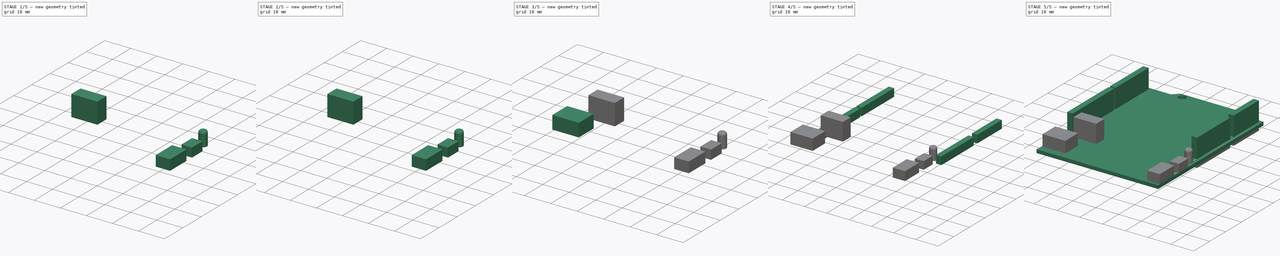
[diagram: build sequence overview — one tinted view per stage of 5, left to right]
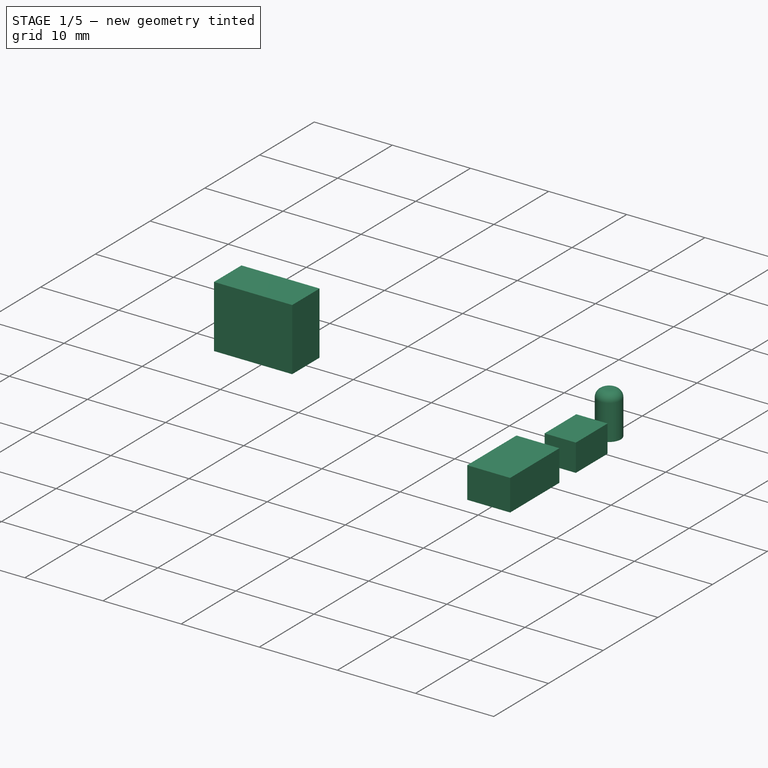
[diagram: stage 1 of 5 — iso view after this stage's code; geometry added in this stage tinted green]
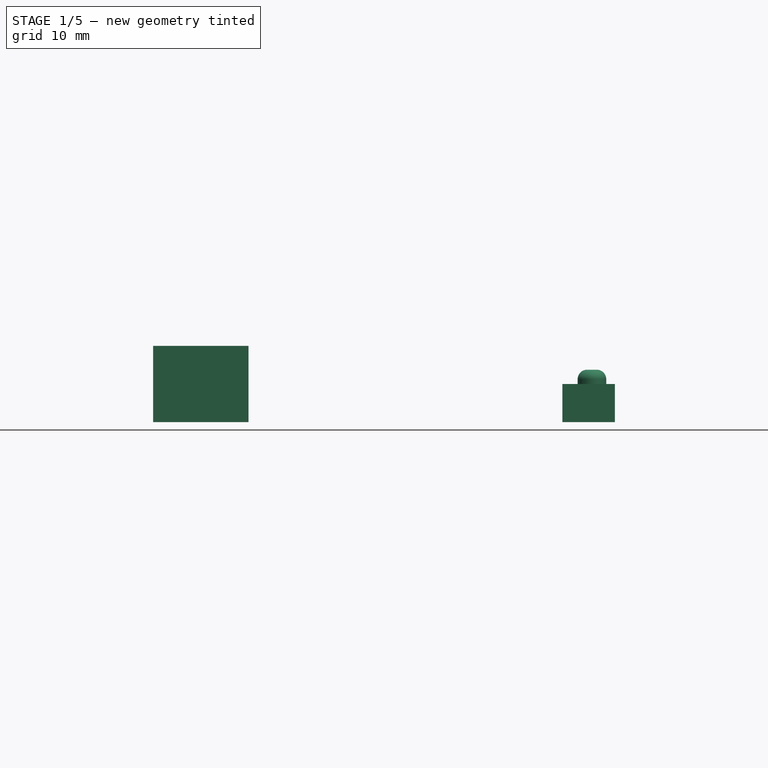
[diagram: stage 1 of 5 — front view after this stage's code; geometry added in this stage tinted green]
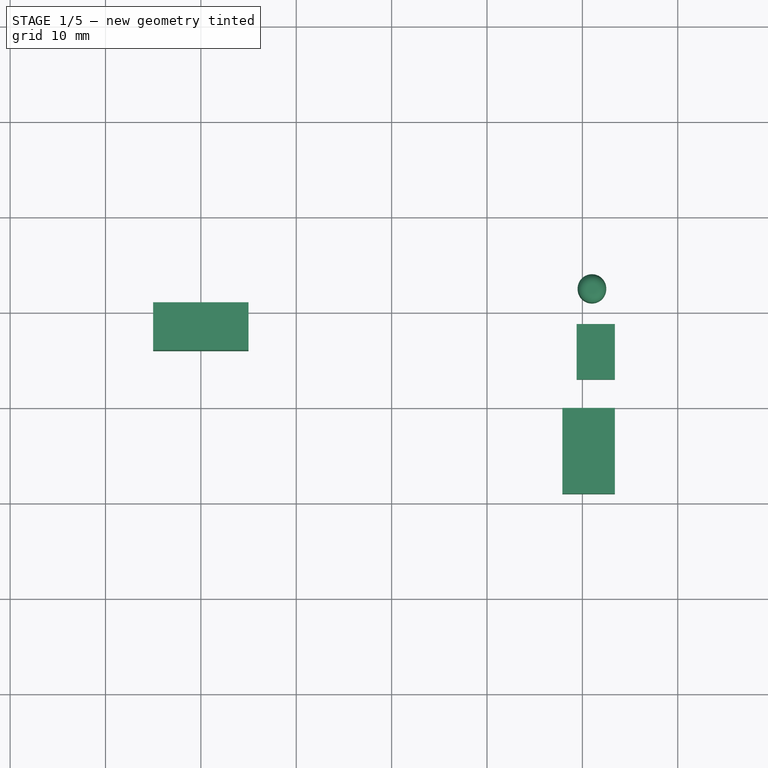
[diagram: stage 1 of 5 — top view after this stage's code; geometry added in this stage tinted green]
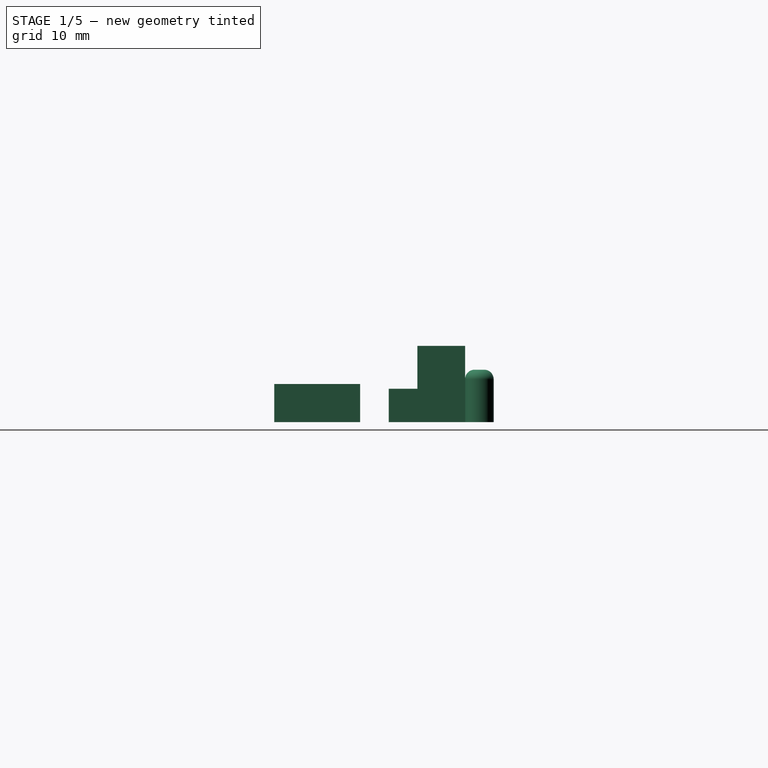
[diagram: stage 1 of 5 — right view after this stage's code; geometry added in this stage tinted green]
FCSTD DOCUMENT  (FreeCAD 0.19R24276 (Git))
Label: Grove_Shield
License: All rights reserved
LicenseURL: http://en.wikipedia.org/wiki/All_rights_reserved
objects: PartDesign::Body×28, Sketcher::SketchObject×15, PartDesign::Pad×14, PartDesign::FeatureBase×14, App::Part×5, PartDesign::Pocket×1, PartDesign::Fillet×1
note: 89 computed .brp shape members not serialized (recipe doc carries the construction recipe); baked Part::Feature solids carry a one-line shape summary decoded from their .brp

FEATURE [PartDesign::Body] Body012  label="Grove_A0"
  BaseFeature = -> Body009
  Group = -> [Clone002]
  Origin = -> Origin013
  Placement = pos=(36,0,0) rot=(0,0,1;0rad)
  Tip = -> Clone002
FEATURE [Sketcher::SketchObject] Sketch011
  FullyConstrained = true
  MapMode = 5
  Support = -> [XY_Plane014]
  sketch-geometry (4):
    g0: LineSegment StartX=5 StartY=21 StartZ=0 EndX=15 EndY=21 EndZ=0
    g1: LineSegment StartX=15 StartY=21 StartZ=0 EndX=15 EndY=16 EndZ=0
    g2: LineSegment StartX=15 StartY=16 StartZ=0 EndX=5 EndY=16 EndZ=0
    g3: LineSegment StartX=5 StartY=16 StartZ=0 EndX=5 EndY=21 EndZ=0
  constraints (12):
    c: Coincident(g0,g1)
    c: Coincident(g1,g2)
    c: Coincident(g2,g3)
    c: Coincident(g3,g0)
    c: Horizontal(g0)
    c: Horizontal(g2)
    c: Vertical(g1)
    c: Vertical(g3)
    c: Distance(g0) = 10
    c: Distance(g1) = 5
    c: DistanceX(g-1,g1) = 15
    c: DistanceY(g-1,g0) = 21
FEATURE [PartDesign::Pad] Pad010
  Direction = (1,1,1)
  Length = 8
  Length2 = 100
  Profile = -> Sketch011
  Type = 0
FEATURE [PartDesign::Body] Body027  label="Grove_D5"
  BaseFeature = -> Body013
  Group = -> [Clone012]
  Origin = -> Origin031
  Placement = pos=(14,36,0) rot=(0,0,1;0rad)
  Tip = -> Clone012
FEATURE [PartDesign::FeatureBase] Clone013
  BaseFeature = -> Body013
FEATURE [PartDesign::Body] Body028  label="Grove_I2C4"
  BaseFeature = -> Body013
  Group = -> [Clone013]
  Origin = -> Origin032
  Placement = pos=(28,36,0) rot=(0,0,1;0rad)
  Tip = -> Clone013
FEATURE [App::Part] Part003  label="GroveConnectors"
  Group = -> [Body009,Body010,Body011,Body012,Body013,Body014,Body015,Body016,Body021,Body022,Body023,Body024,Body025,Body026,Body027,Body028]
  Origin = -> Origin024
FEATURE [Sketcher::SketchObject] Sketch016
  FullyConstrained = true
  MapMode = 5
  Support = -> [XY_Plane034]
  sketch-geometry (1):
    g0: Circle CenterX=51 CenterY=22.5 CenterZ=0 NormalX=0 NormalY=0 NormalZ=1 AngleXU=0 Radius=1.5
  constraints (3):
    c: Diameter(g0) = 3
    c: DistanceX(g-1,g0) = 51
    c: DistanceY(g-1,g0) = 22.5
FEATURE [PartDesign::Pad] Pad015
  Direction = (1,1,1)
  Length = 5.5
  Length2 = 100
  Profile = -> Sketch016
  Type = 0
FEATURE [PartDesign::Fillet] Fillet
  Base = -> Pad015 [Edge3]
  BaseFeature = -> Pad015
  Radius = 1
  SupportTransform = false
FEATURE [PartDesign::Body] Body029  label="PowerLED"
  Group = -> [Sketch016,Pad015,Fillet]
  Origin = -> Origin034
  Tip = -> Fillet
FEATURE [Sketcher::SketchObject] Sketch017
  FullyConstrained = true
  MapMode = 5
  Support = -> [XY_Plane035]
  sketch-geometry (4):
    g0: LineSegment StartX=49.4 StartY=18.8 StartZ=0 EndX=53.4 EndY=18.8 EndZ=0
    g1: LineSegment StartX=53.4 StartY=18.8 StartZ=0 EndX=53.4 EndY=13 EndZ=0
    g2: LineSegment StartX=53.4 StartY=13 StartZ=0 EndX=49.4 EndY=13 EndZ=0
    g3: LineSegment StartX=49.4 StartY=13 StartZ=0 EndX=49.4 EndY=18.8 EndZ=0
  constraints (12):
    c: Coincident(g0,g1)
    c: Coincident(g1,g2)
    c: Coincident(g2,g3)
    c: Coincident(g3,g0)
    c: Horizontal(g0)
    c: Horizontal(g2)
    c: Vertical(g1)
    c: Vertical(g3)
    c: Distance(g2) = 4
    c: Distance(g1) = 5.8
    c: DistanceY(g-1,g0) = 18.8
    c: DistanceX(g-1,g1) = 53.4
FEATURE [PartDesign::Pad] Pad016
  Direction = (1,1,1)
  Length = 3.5
  Length2 = 100
  Profile = -> Sketch017
  Type = 0
FEATURE [PartDesign::Body] Body030  label="ResetButton"
  Group = -> [Sketch017,Pad016]
  Origin = -> Origin035
  Tip = -> Pad016
FEATURE [Sketcher::SketchObject] Sketch018
  FullyConstrained = true
  MapMode = 5
  Support = -> [XY_Plane036]
  sketch-geometry (4):
    g0: LineSegment StartX=47.9 StartY=10 StartZ=0 EndX=53.4 EndY=10 EndZ=0
    g1: LineSegment StartX=53.4 StartY=10 StartZ=0 EndX=53.4 EndY=1 EndZ=0
    g2: LineSegment StartX=53.4 StartY=1 StartZ=0 EndX=47.9 EndY=1 EndZ=0
    g3: LineSegment StartX=47.9 StartY=1 StartZ=0 EndX=47.9 EndY=10 EndZ=0
  constraints (12):
    c: Coincident(g0,g1)
    c: Coincident(g1,g2)
    c: Coincident(g2,g3)
    c: Coincident(g3,g0)
    c: Horizontal(g0)
    c: Horizontal(g2)
    c: Vertical(g1)
    c: Vertical(g3)
    c: Distance(g1) = 9
    c: Distance(g0) = 5.5
    c: DistanceY(g-1,g0) = 10
    c: DistanceX(g-1,g1) = 53.4
FEATURE [PartDesign::Pad] Pad017
  Direction = (1,1,1)
  Length = 4
  Length2 = 100
  Profile = -> Sketch018
  Type = 0
FEATURE [PartDesign::Body] Body031  label="VoltageSwitch"
  Group = -> [Sketch018,Pad017]
  Origin = -> Origin036
  Tip = -> Pad017
FEATURE [App::Part] Part004  label="PowerButtons"
  Group = -> [Body029,Body030,Body031]
  Origin = -> Origin033
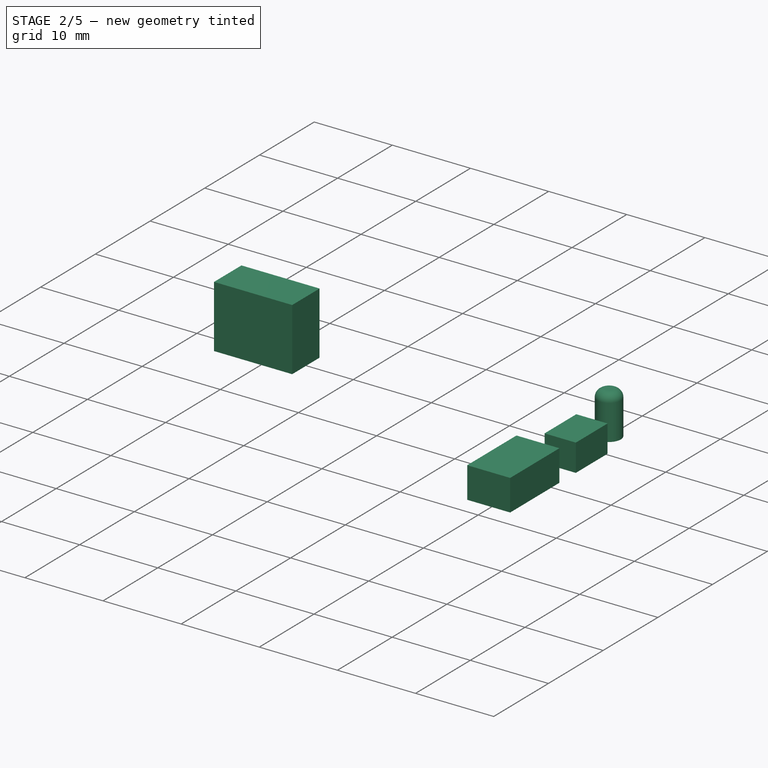
[diagram: stage 2 of 5 — iso view after this stage's code; geometry added in this stage tinted green]
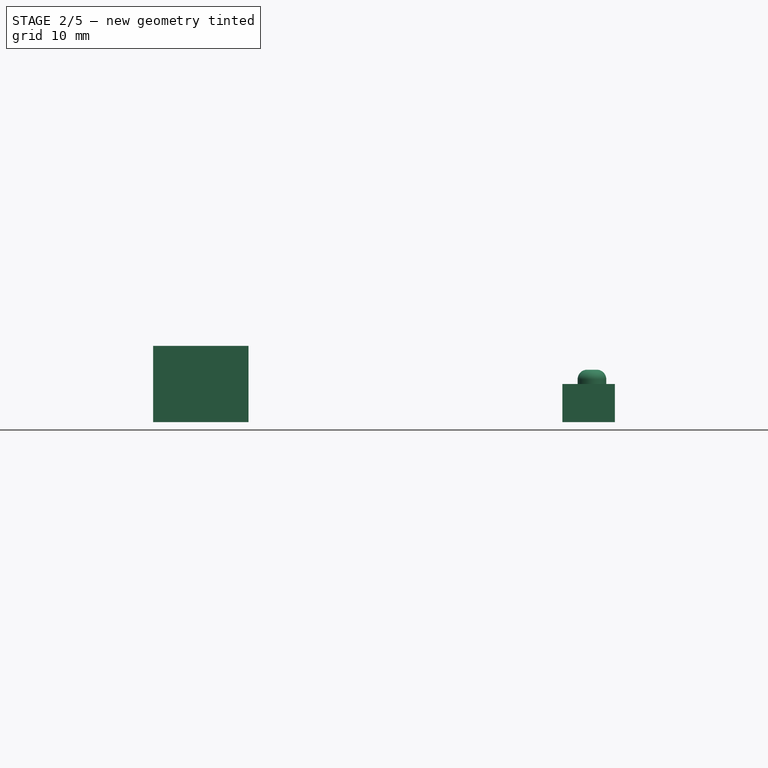
[diagram: stage 2 of 5 — front view after this stage's code; geometry added in this stage tinted green]
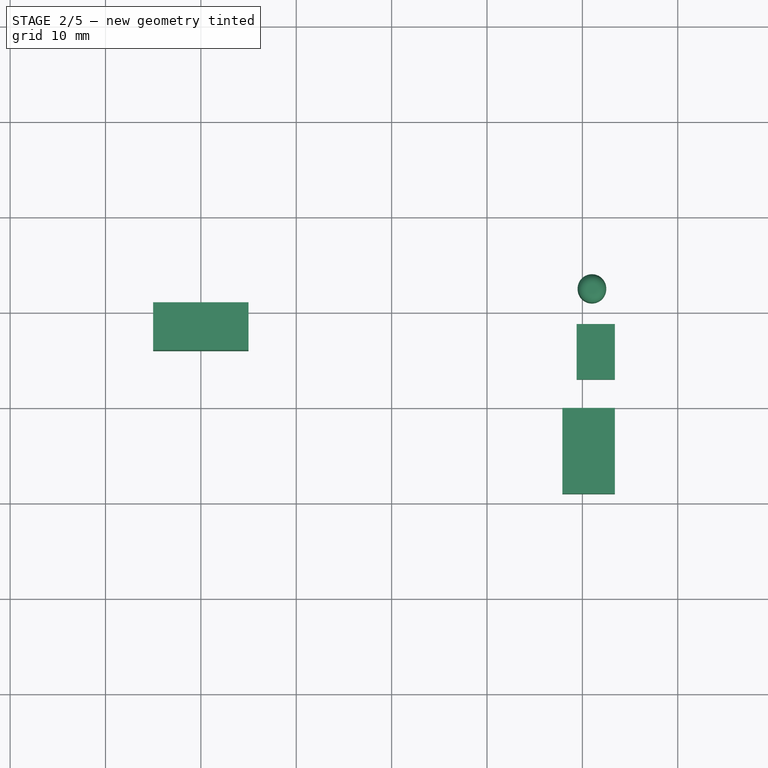
[diagram: stage 2 of 5 — top view after this stage's code; geometry added in this stage tinted green]
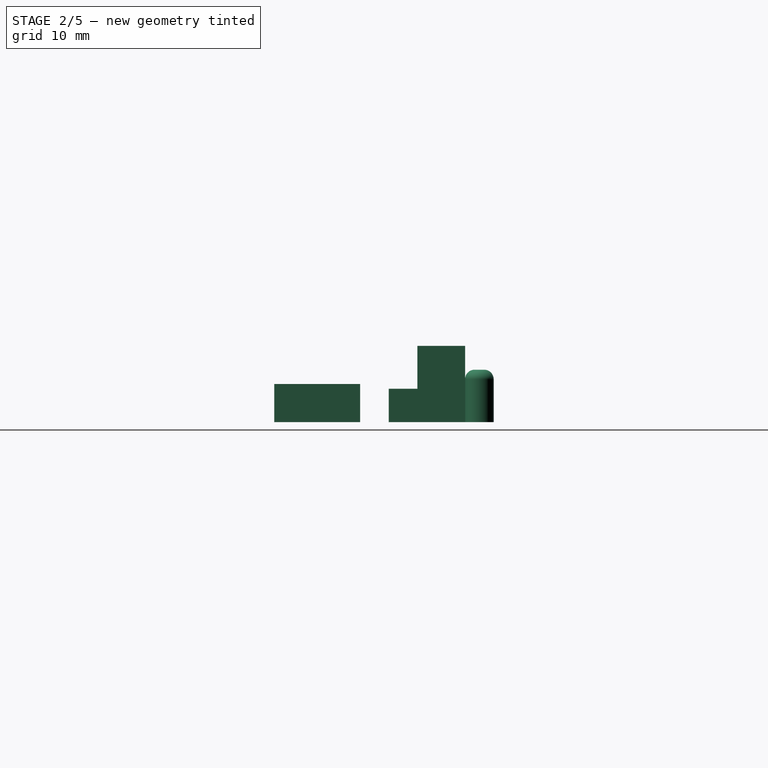
[diagram: stage 2 of 5 — right view after this stage's code; geometry added in this stage tinted green]
FEATURE [PartDesign::Body] Body021  label="Grove_D7"
  BaseFeature = -> Body013
  Group = -> [Clone006]
  Origin = -> Origin025
  Placement = pos=(14,12,0) rot=(0,0,1;0rad)
  Tip = -> Clone006
FEATURE [PartDesign::FeatureBase] Clone007
  BaseFeature = -> Body013
FEATURE [PartDesign::Body] Body022  label="Grove_I2C2"
  BaseFeature = -> Body013
  Group = -> [Clone007]
  Origin = -> Origin026
  Placement = pos=(28,12,0) rot=(0,0,1;0rad)
  Tip = -> Clone007
FEATURE [PartDesign::FeatureBase] Clone008
  BaseFeature = -> Body013
FEATURE [PartDesign::Body] Body023  label="Grove_D2"
  BaseFeature = -> Body013
  Group = -> [Clone008]
  Origin = -> Origin027
  Placement = pos=(0,24,0) rot=(0,0,1;0rad)
  Tip = -> Clone008
FEATURE [PartDesign::FeatureBase] Clone009
  BaseFeature = -> Body013
FEATURE [PartDesign::Body] Body024  label="Grove_D6"
  BaseFeature = -> Body013
  Group = -> [Clone009]
  Origin = -> Origin028
  Placement = pos=(14,24,0) rot=(0,0,1;0rad)
  Tip = -> Clone009
FEATURE [PartDesign::FeatureBase] Clone010
  BaseFeature = -> Body013
FEATURE [PartDesign::Body] Body025  label="Grove_I2C3"
  BaseFeature = -> Body013
  Group = -> [Clone010]
  Origin = -> Origin029
  Placement = pos=(28,24,0) rot=(0,0,1;0rad)
  Tip = -> Clone010
FEATURE [PartDesign::FeatureBase] Clone011
  BaseFeature = -> Body013
FEATURE [PartDesign::Body] Body026  label="Grove_UART"
  BaseFeature = -> Body013
  Group = -> [Clone011]
  Origin = -> Origin030
  Placement = pos=(0,36,0) rot=(0,0,1;0rad)
  Tip = -> Clone011
FEATURE [PartDesign::FeatureBase] Clone012
  BaseFeature = -> Body013
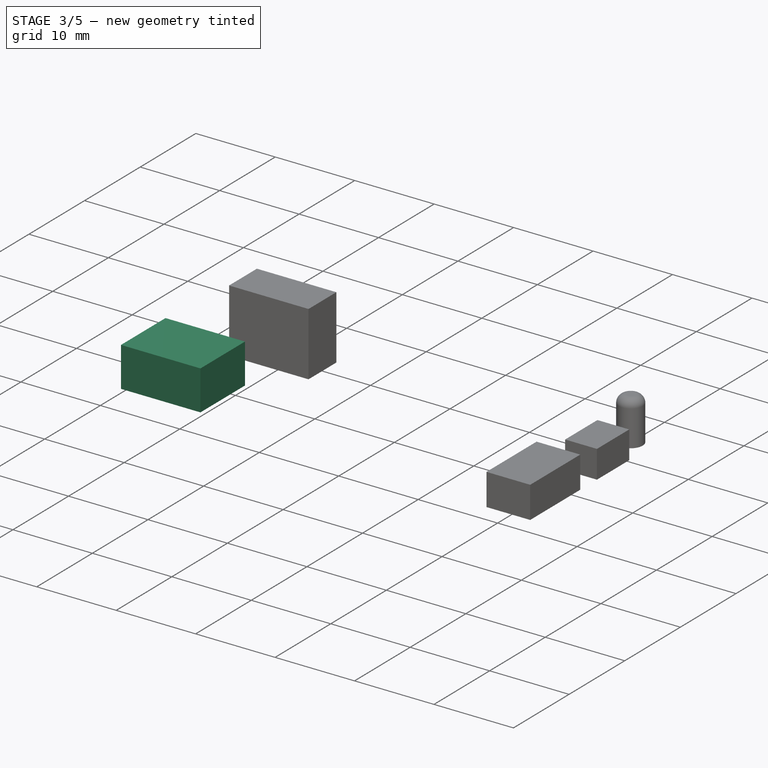
[diagram: stage 3 of 5 — iso view after this stage's code; geometry added in this stage tinted green]
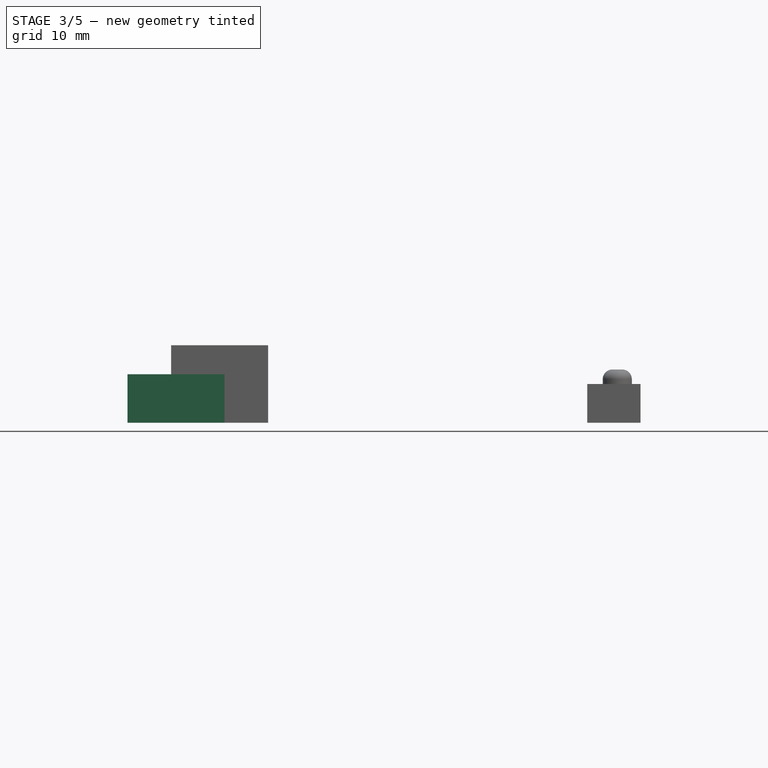
[diagram: stage 3 of 5 — front view after this stage's code; geometry added in this stage tinted green]
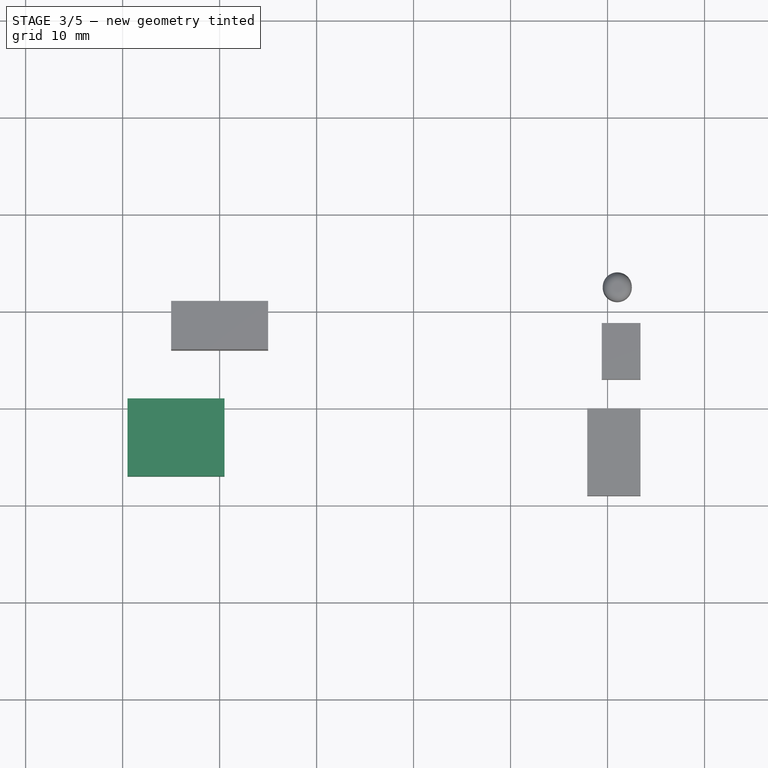
[diagram: stage 3 of 5 — top view after this stage's code; geometry added in this stage tinted green]
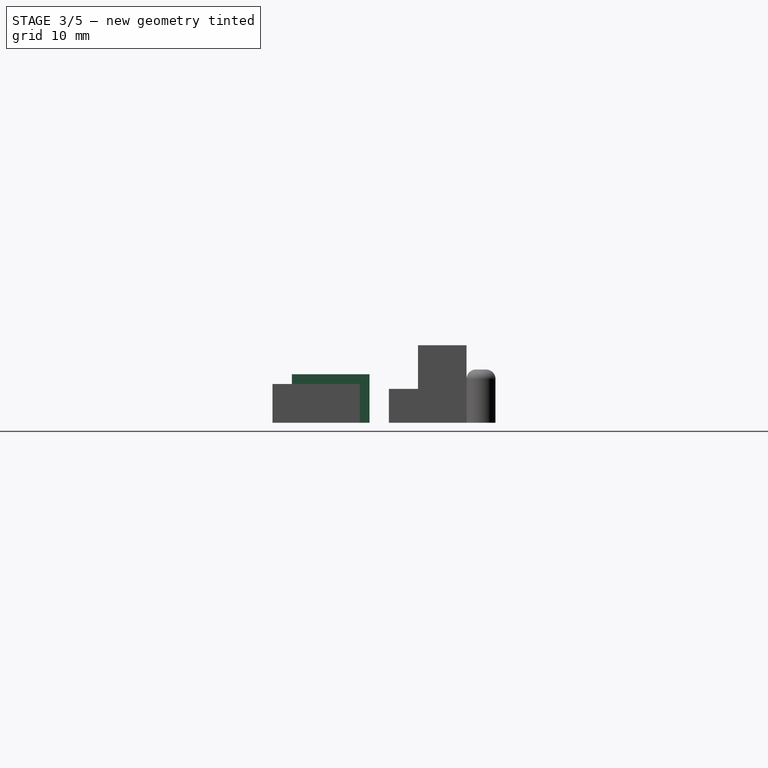
[diagram: stage 3 of 5 — right view after this stage's code; geometry added in this stage tinted green]
FEATURE [PartDesign::Body] Body008  label="Pins4"
  Group = -> [Sketch009,Pad008]
  Origin = -> Origin009
  Tip = -> Pad008
FEATURE [Sketcher::SketchObject] Sketch010
  FullyConstrained = true
  MapMode = 5
  Support = -> [XY_Plane010]
  sketch-geometry (4):
    g0: LineSegment StartX=0.5 StartY=11 StartZ=0 EndX=10.5 EndY=11 EndZ=0
    g1: LineSegment StartX=10.5 StartY=11 StartZ=0 EndX=10.5 EndY=3 EndZ=0
    g2: LineSegment StartX=10.5 StartY=3 StartZ=0 EndX=0.5 EndY=3 EndZ=0
    g3: LineSegment StartX=0.5 StartY=3 StartZ=0 EndX=0.5 EndY=11 EndZ=0
  constraints (12):
    c: Coincident(g0,g1)
    c: Coincident(g1,g2)
    c: Coincident(g2,g3)
    c: Coincident(g3,g0)
    c: Horizontal(g0)
    c: Horizontal(g2)
    c: Vertical(g1)
    c: Vertical(g3)
    c: Distance(g0) = 10
    c: Distance(g1) = 8
    c: DistanceX(g-1,g2) = 0.5
    c: DistanceY(g-1,g0) = 11
FEATURE [PartDesign::Pad] Pad009
  Direction = (1,1,1)
  Length = 5
  Length2 = 100
  Profile = -> Sketch010
  Type = 0
FEATURE [PartDesign::Body] Body011  label="Grove_A1"
  BaseFeature = -> Body009
  Group = -> [Clone001]
  Origin = -> Origin012
  Placement = pos=(24,0,0) rot=(0,0,1;0rad)
  Tip = -> Clone001
FEATURE [PartDesign::FeatureBase] Clone002
  BaseFeature = -> Body009
FEATURE [PartDesign::Body] Body013  label="Grove_D4"
  Group = -> [Sketch011,Pad010]
  Origin = -> Origin014
  Tip = -> Pad010
FEATURE [PartDesign::FeatureBase] Clone003
  BaseFeature = -> Body013
FEATURE [PartDesign::Body] Body014  label="Grove_D8"
  BaseFeature = -> Body013
  Group = -> [Clone003]
  Origin = -> Origin015
  Placement = pos=(14,0,0) rot=(0,0,1;0rad)
  Tip = -> Clone003
FEATURE [PartDesign::FeatureBase] Clone004
  BaseFeature = -> Body013
FEATURE [PartDesign::Body] Body015  label="Grove_I2C"
  BaseFeature = -> Body013
  Group = -> [Clone004]
  Origin = -> Origin016
  Placement = pos=(28,0,0) rot=(0,0,1;0rad)
  Tip = -> Clone004
FEATURE [PartDesign::FeatureBase] Clone005
  BaseFeature = -> Body013
FEATURE [PartDesign::Body] Body017  label="Header4_6pin001"
  Group = -> [Sketch015,Pad014]
  Origin = -> Origin020
  Tip = -> Pad014
FEATURE [PartDesign::Body] Body018  label="Header2_8pin001"
  Group = -> [Sketch012,Pad012]
  Origin = -> Origin021
  Tip = -> Pad012
FEATURE [PartDesign::Body] Body019  label="Header1_10pin001"
  Group = -> [Sketch014,Pad011]
  Origin = -> Origin022
  Tip = -> Pad011
FEATURE [PartDesign::Body] Body020  label="Header3_8pin001"
  Group = -> [Sketch013,Pad013]
  Origin = -> Origin019
  Tip = -> Pad013
FEATURE [App::Part] Part001  label="Headers"
  Group = -> [Body017,Body018,Body019,Body020]
  Origin = -> Origin018
FEATURE [App::Part] Part002  label="Pins"
  Group = -> [Body005,Body006,Body007,Body008]
  Origin = -> Origin023
FEATURE [PartDesign::FeatureBase] Clone006
  BaseFeature = -> Body013
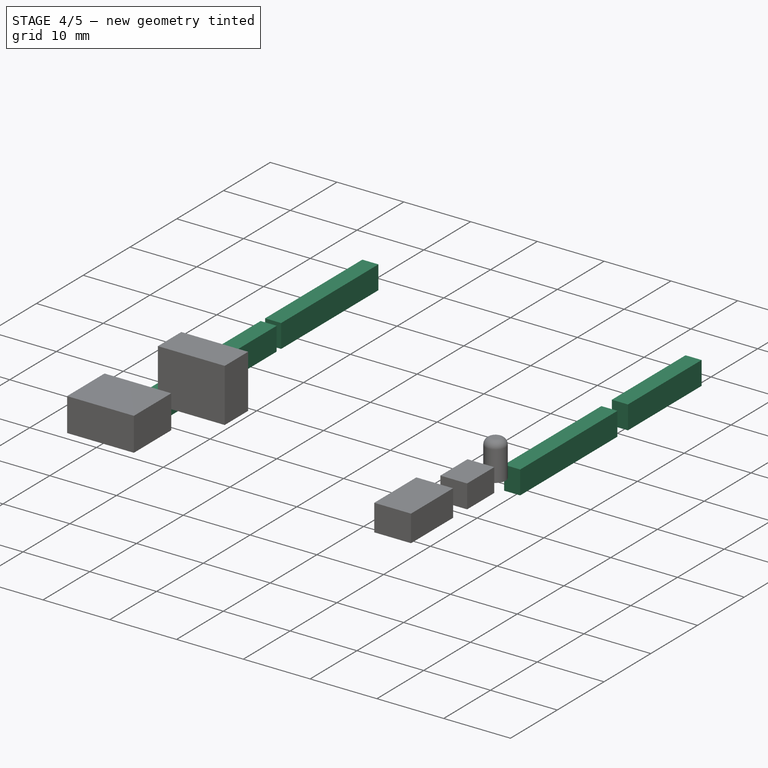
[diagram: stage 4 of 5 — iso view after this stage's code; geometry added in this stage tinted green]
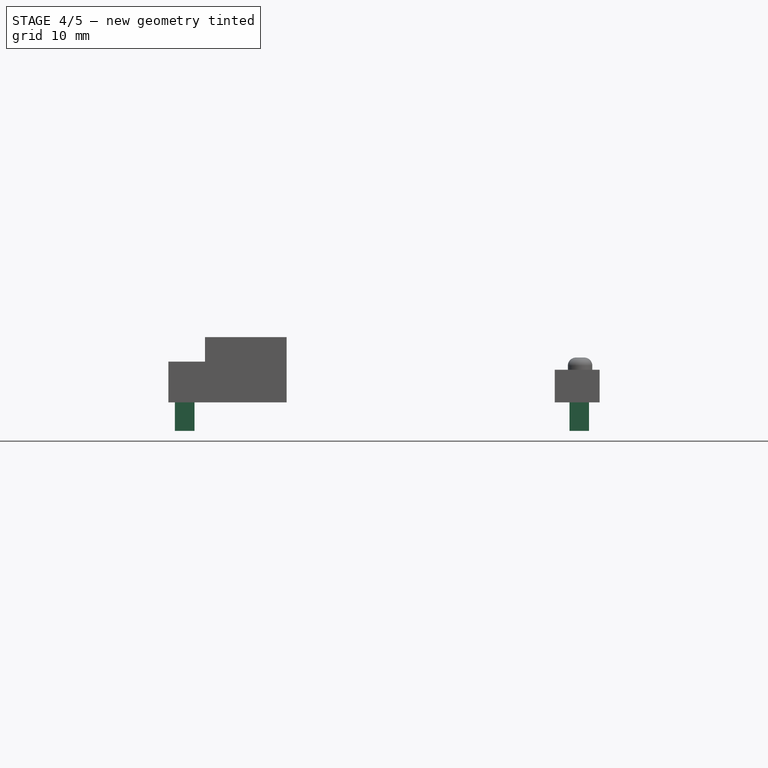
[diagram: stage 4 of 5 — front view after this stage's code; geometry added in this stage tinted green]
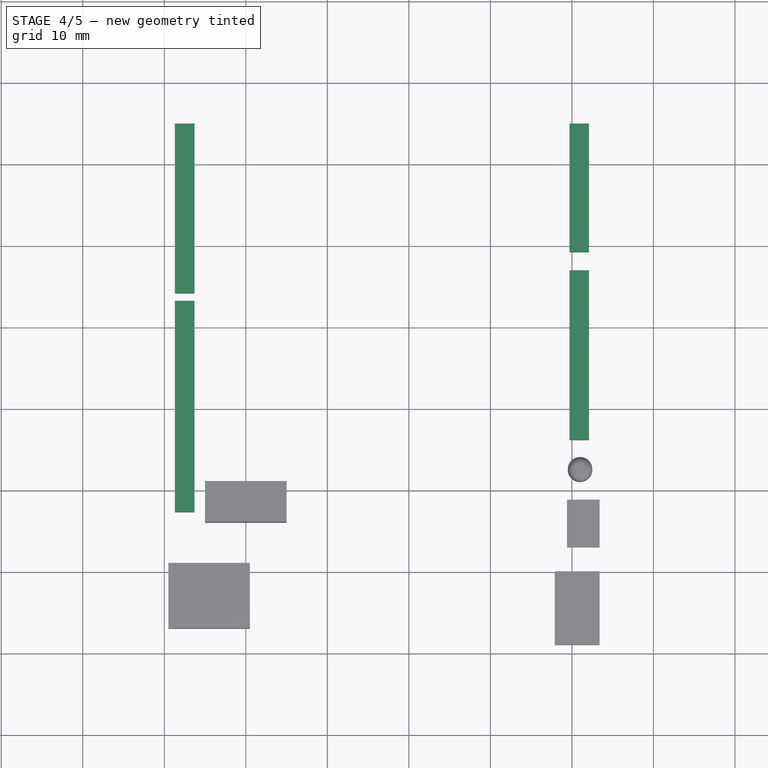
[diagram: stage 4 of 5 — top view after this stage's code; geometry added in this stage tinted green]
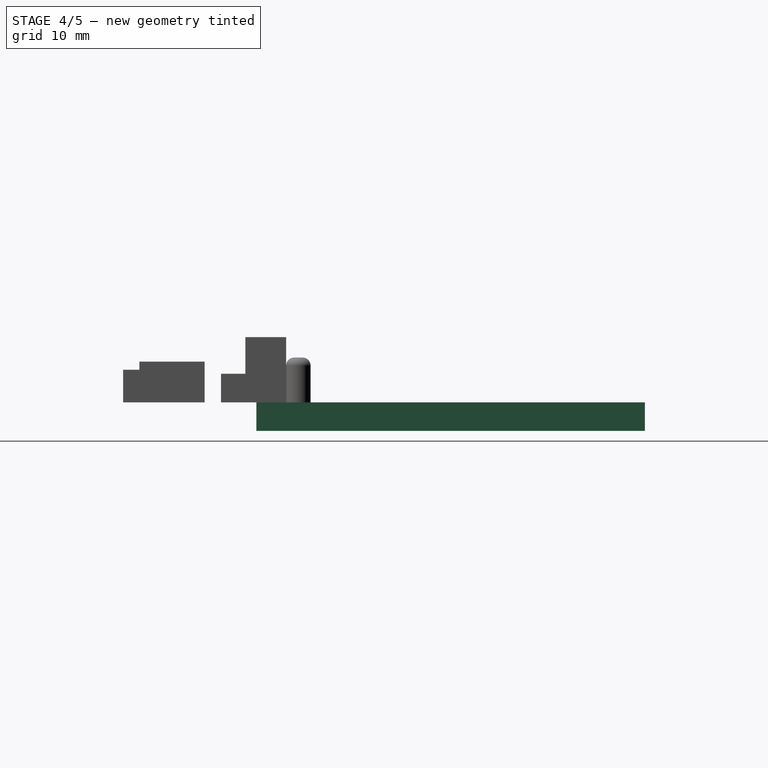
[diagram: stage 4 of 5 — right view after this stage's code; geometry added in this stage tinted green]
FEATURE [PartDesign::Body] Body  label="MainBoard"
  Group = -> [Sketch,Pad,Sketch001,Pocket]
  Origin = -> Origin001
  Tip = -> Pocket
FEATURE [App::Part] Part  label="GroveShield"
  Group = -> [Body]
  Origin = -> Origin
FEATURE [Sketcher::SketchObject] Sketch006
  FullyConstrained = true
  MapMode = 5
  Support = -> [XY_Plane006]
  sketch-geometry (4):
    g0: LineSegment StartX=1.3 StartY=43.25 StartZ=0 EndX=3.7 EndY=43.25 EndZ=0
    g1: LineSegment StartX=3.7 StartY=43.25 StartZ=0 EndX=3.7 EndY=17.35 EndZ=0
    g2: LineSegment StartX=3.7 StartY=17.35 StartZ=0 EndX=1.3 EndY=17.35 EndZ=0
    g3: LineSegment StartX=1.3 StartY=17.35 StartZ=0 EndX=1.3 EndY=43.25 EndZ=0
  constraints (12):
    c: Coincident(g0,g1)
    c: Coincident(g1,g2)
    c: Coincident(g2,g3)
    c: Coincident(g3,g0)
    c: Horizontal(g0)
    c: Horizontal(g2)
    c: Vertical(g1)
    c: Vertical(g3)
    c: Distance(g2) = 2.4
    c: Distance(g1) = 25.9
    c: DistanceX(g-1,g2) = 1.3
    c: DistanceY(g-1,g0) = 43.25
FEATURE [PartDesign::Pad] Pad005
  Direction = (1,1,1)
  Length = 3.5
  Length2 = 100
  Profile = -> Sketch006
  Reversed = true
  Type = 0
FEATURE [PartDesign::Body] Body005  label="Pins1"
  Group = -> [Sketch006,Pad005]
  Origin = -> Origin006
  Tip = -> Pad005
FEATURE [Sketcher::SketchObject] Sketch007
  FullyConstrained = true
  MapMode = 5
  Support = -> [XY_Plane007]
  sketch-geometry (4):
    g0: LineSegment StartX=1.3 StartY=65 StartZ=0 EndX=3.7 EndY=65 EndZ=0
    g1: LineSegment StartX=3.7 StartY=65 StartZ=0 EndX=3.7 EndY=44.2 EndZ=0
    g2: LineSegment StartX=3.7 StartY=44.2 StartZ=0 EndX=1.3 EndY=44.2 EndZ=0
    g3: LineSegment StartX=1.3 StartY=44.2 StartZ=0 EndX=1.3 EndY=65 EndZ=0
  constraints (12):
    c: Coincident(g0,g1)
    c: Coincident(g1,g2)
    c: Coincident(g2,g3)
    c: Coincident(g3,g0)
    c: Horizontal(g0)
    c: Horizontal(g2)
    c: Vertical(g1)
    c: Vertical(g3)
    c: Distance(g0) = 2.4
    c: Distance(g1) = 20.8
    c: DistanceY(g-1,g0) = 65
    c: DistanceX(g-1,g2) = 1.3
FEATURE [PartDesign::Pad] Pad006
  Direction = (1,1,1)
  Length = 3.5
  Length2 = 100
  Profile = -> Sketch007
  Reversed = true
  Type = 0
FEATURE [PartDesign::Body] Body006  label="Pins2"
  Group = -> [Sketch007,Pad006]
  Origin = -> Origin007
  Tip = -> Pad006
FEATURE [Sketcher::SketchObject] Sketch008
  FullyConstrained = true
  MapMode = 5
  Support = -> [XY_Plane008]
  sketch-geometry (4):
    g0: LineSegment StartX=49.7 StartY=47 StartZ=0 EndX=52.1 EndY=47 EndZ=0
    g1: LineSegment StartX=52.1 StartY=47 StartZ=0 EndX=52.1 EndY=26.2 EndZ=0
    g2: LineSegment StartX=52.1 StartY=26.2 StartZ=0 EndX=49.7 EndY=26.2 EndZ=0
    g3: LineSegment StartX=49.7 StartY=26.2 StartZ=0 EndX=49.7 EndY=47 EndZ=0
  constraints (12):
    c: Coincident(g0,g1)
    c: Coincident(g1,g2)
    c: Coincident(g2,g3)
    c: Coincident(g3,g0)
    c: Horizontal(g0)
    c: Horizontal(g2)
    c: Vertical(g1)
    c: Vertical(g3)
    c: Distance(g0) = 2.4
    c: Distance(g1) = 20.8
    c: DistanceX(g-1,g1) = 52.1
    c: DistanceY(g-1,g0) = 47
FEATURE [PartDesign::Pad] Pad007
  Direction = (1,1,1)
  Length = 3.5
  Length2 = 100
  Profile = -> Sketch008
  Reversed = true
  Type = 0
FEATURE [PartDesign::Body] Body007  label="Pins3"
  Group = -> [Sketch008,Pad007]
  Origin = -> Origin008
  Tip = -> Pad007
FEATURE [Sketcher::SketchObject] Sketch009
  FullyConstrained = true
  MapMode = 5
  Support = -> [XY_Plane009]
  sketch-geometry (4):
    g0: LineSegment StartX=49.7 StartY=65 StartZ=0 EndX=52.1 EndY=65 EndZ=0
    g1: LineSegment StartX=52.1 StartY=65 StartZ=0 EndX=52.1 EndY=49.25 EndZ=0
    g2: LineSegment StartX=52.1 StartY=49.25 StartZ=0 EndX=49.7 EndY=49.25 EndZ=0
    g3: LineSegment StartX=49.7 StartY=49.25 StartZ=0 EndX=49.7 EndY=65 EndZ=0
  constraints (12):
    c: Coincident(g0,g1)
    c: Coincident(g1,g2)
    c: Coincident(g2,g3)
    c: Coincident(g3,g0)
    c: Horizontal(g0)
    c: Horizontal(g2)
    c: Vertical(g1)
    c: Vertical(g3)
    c: Distance(g0) = 2.4
    c: Distance(g1) = 15.75
    c: DistanceY(g-1,g0) = 65
    c: DistanceX(g-1,g1) = 52.1
FEATURE [PartDesign::Pad] Pad008
  Direction = (1,1,1)
  Length = 3.5
  Length2 = 100
  Profile = -> Sketch009
  Reversed = true
  Type = 0
FEATURE [PartDesign::Body] Body009  label="Grove_A3"
  Group = -> [Sketch010,Pad009]
  Origin = -> Origin010
  Tip = -> Pad009
FEATURE [PartDesign::FeatureBase] Clone
  BaseFeature = -> Body009
FEATURE [PartDesign::Body] Body010  label="Grove_A2"
  BaseFeature = -> Body009
  Group = -> [Clone]
  Origin = -> Origin011
  Placement = pos=(12,0,0) rot=(0,0,1;0rad)
  Tip = -> Clone
FEATURE [PartDesign::FeatureBase] Clone001
  BaseFeature = -> Body009
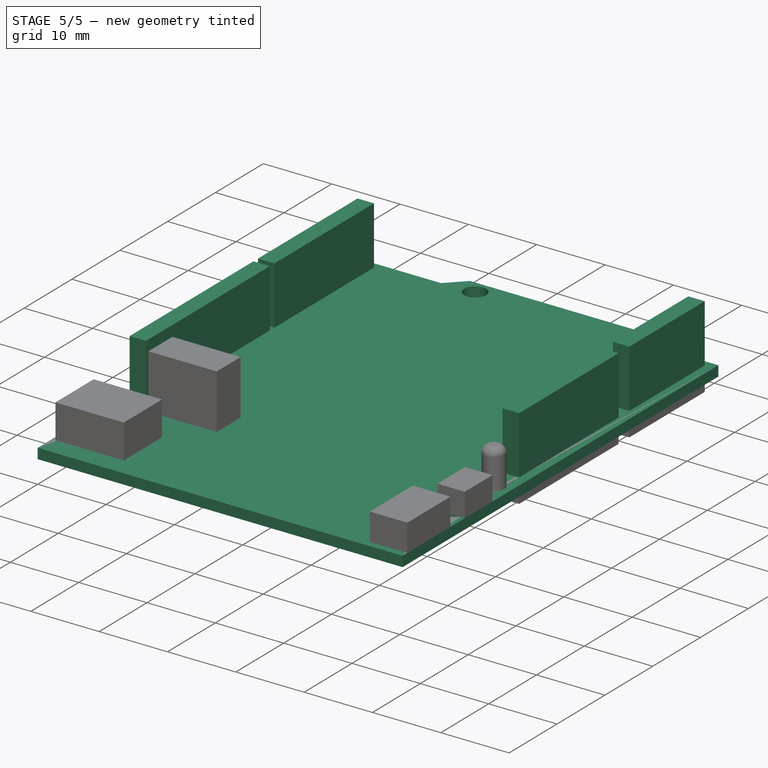
[diagram: stage 5 of 5 — iso view after this stage's code; geometry added in this stage tinted green]
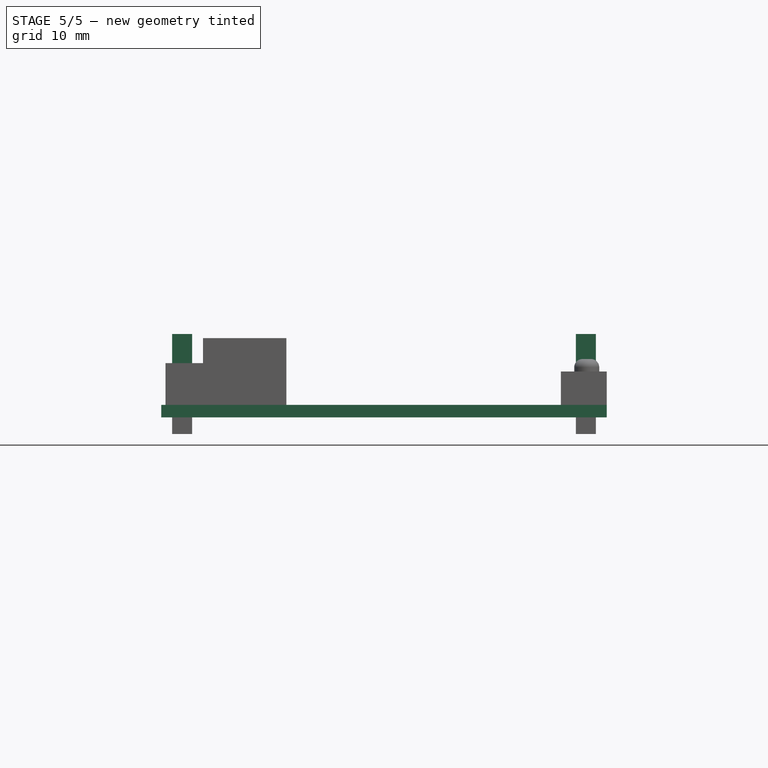
[diagram: stage 5 of 5 — front view after this stage's code; geometry added in this stage tinted green]
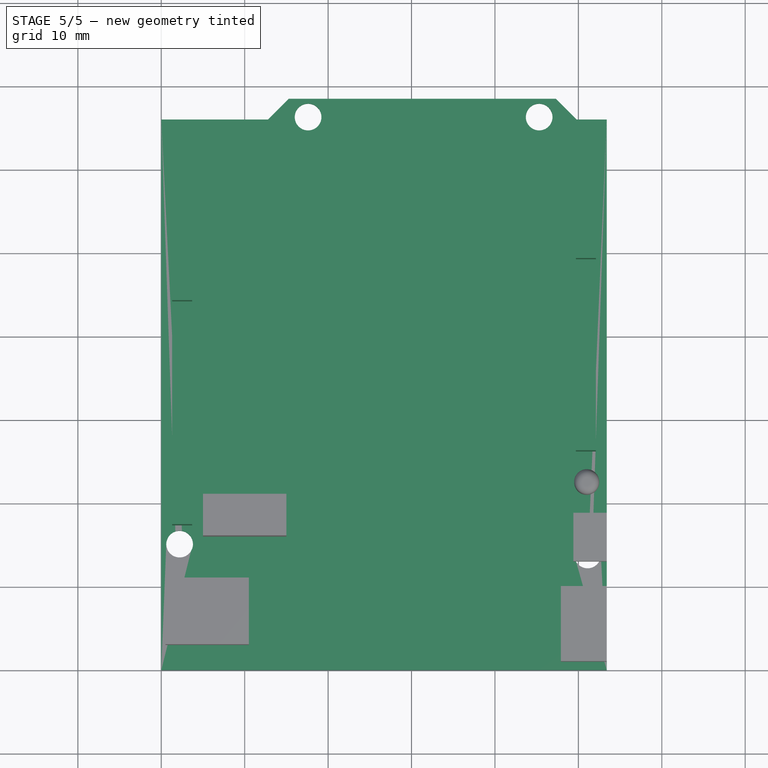
[diagram: stage 5 of 5 — top view after this stage's code; geometry added in this stage tinted green]
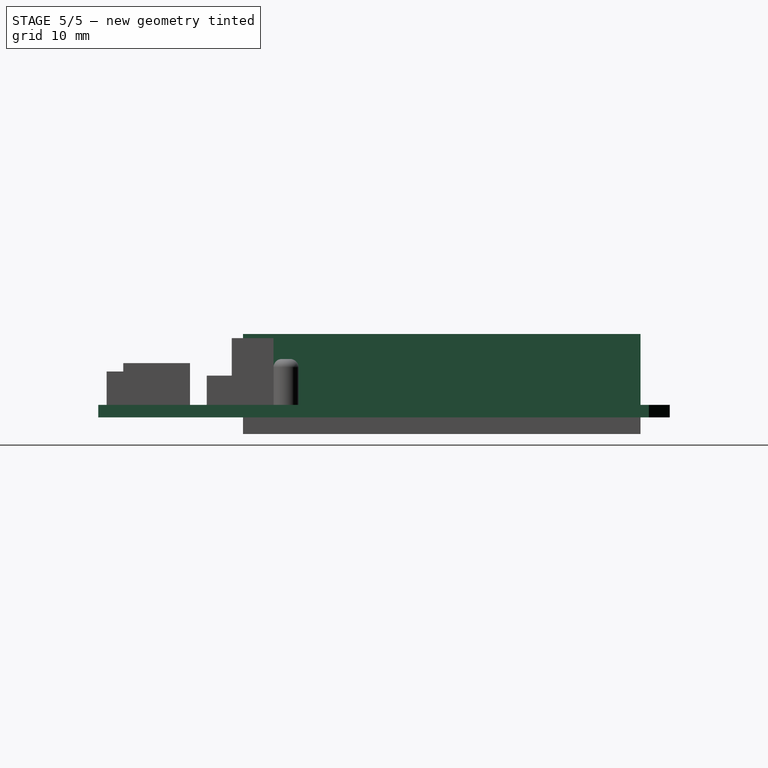
[diagram: stage 5 of 5 — right view after this stage's code; geometry added in this stage tinted green]
FEATURE [Sketcher::SketchObject] Sketch
  FullyConstrained = true
  MapMode = 5
  Support = -> [XY_Plane001]
  sketch-geometry (8):
    g0: LineSegment StartX=-7e-16 StartY=0 StartZ=0 EndX=53.4 EndY=0 EndZ=0
    g1: LineSegment StartX=53.4 StartY=0 StartZ=0 EndX=53.4 EndY=66 EndZ=0
    g2: LineSegment StartX=-7e-16 StartY=66 StartZ=0 EndX=-7e-16 EndY=0 EndZ=0
    g3: LineSegment StartX=12.8 StartY=66 StartZ=0 EndX=15.3 EndY=68.5 EndZ=0
    g4: LineSegment StartX=15.3 StartY=68.5 StartZ=0 EndX=47.3 EndY=68.5 EndZ=0
    g5: LineSegment StartX=47.3 StartY=68.5 StartZ=0 EndX=49.8 EndY=66 EndZ=0
    g6: LineSegment StartX=-7e-16 StartY=66 StartZ=0 EndX=12.8 EndY=66 EndZ=0
    g7: LineSegment StartX=49.8 StartY=66 StartZ=0 EndX=53.4 EndY=66 EndZ=0
  constraints (23):
    c: Coincident(g0,g1)
    c: Coincident(g2,g0)
    c: Horizontal(g0)
    c: Vertical(g1)
    c: Vertical(g2)
    c: Coincident(g0,g-1)
    c: Coincident(g4,g3)
    c: Horizontal(g4)
    c: Coincident(g5,g4)
    c: Coincident(g6,g2)
    c: Coincident(g6,g3)
    c: Horizontal(g6)
    c: Coincident(g7,g5)
    c: Coincident(g7,g1)
    c: Horizontal(g7)
    c: Equal(g3,g5)
    c: Angle(g3,g6) = 2.35619
    c: Angle(g7,g5) = 2.35619
    c: DistanceX(g0,g0) = 53.4
    c: DistanceY(g0,g2) = 66
    c: DistanceY(g0,g3) = 68.5
    c: DistanceX(g2,g3) = 15.3
    c: Distance(g4) = 32
FEATURE [PartDesign::Pad] Pad
  Direction = (1,1,1)
  Length = 1.5
  Length2 = 100
  Profile = -> Sketch
  Reversed = true
  Type = 0
FEATURE [Sketcher::SketchObject] Sketch001
  FullyConstrained = true
  MapMode = 5
  Support = -> [XY_Plane001]
  sketch-geometry (5):
    g0: Circle CenterX=2.2 CenterY=15.1 CenterZ=0 NormalX=0 NormalY=0 NormalZ=1 AngleXU=0 Radius=1.6
    g1: Circle CenterX=51.1 CenterY=13.8 CenterZ=0 NormalX=0 NormalY=0 NormalZ=1 AngleXU=0 Radius=1.6
    g2: Circle CenterX=17.6 CenterY=66.3 CenterZ=0 NormalX=0 NormalY=0 NormalZ=1 AngleXU=0 Radius=1.6
    g3: Circle CenterX=45.3 CenterY=66.3 CenterZ=0 NormalX=0 NormalY=0 NormalZ=1 AngleXU=0 Radius=1.6
    g4: LineSegment StartX=17.6 StartY=66.3 StartZ=0 EndX=45.3 EndY=66.3 EndZ=0
  constraints (14):
    c: DistanceY(g-1,g0) = 15.1
    c: DistanceX(g-1,g0) = 2.2
    c: Equal(g0,g1)
    c: Equal(g2,g3)
    c: Equal(g3,g1)
    c: Diameter(g0) = 3.2
    c: DistanceX(g-1,g1) = 51.1
    c: DistanceY(g-1,g1) = 13.8
    c: DistanceY(g-1,g2) = 66.3
    c: Coincident(g4,g2)
    c: Coincident(g4,g3)
    c: Horizontal(g4)
    c: DistanceX(g-1,g2) = 17.6
    c: DistanceX(g2,g3) = 27.7
FEATURE [PartDesign::Pocket] Pocket
  BaseFeature = -> Pad
  Length = 5
  Length2 = 100
  Profile = -> Sketch001
  Type = 1
FEATURE [PartDesign::Body] Body016  label="Grove_D3"
  BaseFeature = -> Body013
  Group = -> [Clone005]
  Origin = -> Origin017
  Placement = pos=(0,12,0) rot=(0,0,1;0rad)
  Tip = -> Clone005
FEATURE [Sketcher::SketchObject] Sketch012
  FullyConstrained = true
  MapMode = 5
  Support = -> [XY_Plane022]
  sketch-geometry (4):
    g0: LineSegment StartX=1.3 StartY=65 StartZ=0 EndX=3.7 EndY=65 EndZ=0
    g1: LineSegment StartX=3.7 StartY=65 StartZ=0 EndX=3.7 EndY=44.2 EndZ=0
    g2: LineSegment StartX=3.7 StartY=44.2 StartZ=0 EndX=1.3 EndY=44.2 EndZ=0
    g3: LineSegment StartX=1.3 StartY=44.2 StartZ=0 EndX=1.3 EndY=65 EndZ=0
  constraints (12):
    c: Coincident(g0,g1)
    c: Coincident(g1,g2)
    c: Coincident(g2,g3)
    c: Coincident(g3,g0)
    c: Horizontal(g0)
    c: Horizontal(g2)
    c: Vertical(g1)
    c: Vertical(g3)
    c: DistanceX(g0,g0) = 2.4
    c: DistanceX(g-1,g2) = 1.3
    c: DistanceY(g-1,g0) = 65
    c: DistanceY(g2,g0) = 20.8
FEATURE [PartDesign::Pad] Pad012
  Direction = (1,1,1)
  Length = 8.5
  Length2 = 100
  Profile = -> Sketch012
  Type = 0
FEATURE [Sketcher::SketchObject] Sketch013
  FullyConstrained = true
  MapMode = 5
  Support = -> [XY_Plane020]
  sketch-geometry (4):
    g0: LineSegment StartX=49.7 StartY=47 StartZ=0 EndX=52.1 EndY=47 EndZ=0
    g1: LineSegment StartX=52.1 StartY=47 StartZ=0 EndX=52.1 EndY=26.2 EndZ=0
    g2: LineSegment StartX=52.1 StartY=26.2 StartZ=0 EndX=49.7 EndY=26.2 EndZ=0
    g3: LineSegment StartX=49.7 StartY=26.2 StartZ=0 EndX=49.7 EndY=47 EndZ=0
  constraints (12):
    c: Coincident(g0,g1)
    c: Coincident(g1,g2)
    c: Coincident(g2,g3)
    c: Coincident(g3,g0)
    c: Horizontal(g0)
    c: Horizontal(g2)
    c: Vertical(g1)
    c: Vertical(g3)
    c: DistanceX(g0,g0) = 2.4
    c: DistanceX(g-1,g1) = 52.1
    c: DistanceY(g2,g0) = 20.8
    c: DistanceY(g-1,g0) = 47
FEATURE [PartDesign::Pad] Pad013
  Direction = (1,1,1)
  Length = 8.5
  Length2 = 100
  Profile = -> Sketch013
  Type = 0
FEATURE [Sketcher::SketchObject] Sketch014
  FullyConstrained = true
  MapMode = 5
  Support = -> [XY_Plane021]
  sketch-geometry (4):
    g0: LineSegment StartX=1.3 StartY=43.25 StartZ=0 EndX=3.7 EndY=43.25 EndZ=0
    g1: LineSegment StartX=3.7 StartY=43.25 StartZ=0 EndX=3.7 EndY=17.35 EndZ=0
    g2: LineSegment StartX=3.7 StartY=17.35 StartZ=0 EndX=1.3 EndY=17.35 EndZ=0
    g3: LineSegment StartX=1.3 StartY=17.35 StartZ=0 EndX=1.3 EndY=43.25 EndZ=0
  constraints (12):
    c: Coincident(g0,g1)
    c: Coincident(g1,g2)
    c: Coincident(g2,g3)
    c: Coincident(g3,g0)
    c: Horizontal(g0)
    c: Horizontal(g2)
    c: Vertical(g1)
    c: Vertical(g3)
    c: DistanceX(g0,g0) = 2.4
    c: DistanceY(g2,g0) = 25.9
    c: DistanceX(g-1,g2) = 1.3
    c: DistanceY(g-1,g0) = 43.25
FEATURE [PartDesign::Pad] Pad011
  Direction = (1,1,1)
  Length = 8.5
  Length2 = 100
  Profile = -> Sketch014
  Type = 0
FEATURE [Sketcher::SketchObject] Sketch015
  FullyConstrained = true
  MapMode = 5
  Support = -> [XY_Plane019]
  sketch-geometry (4):
    g0: LineSegment StartX=49.7 StartY=65 StartZ=0 EndX=52.1 EndY=65 EndZ=0
    g1: LineSegment StartX=52.1 StartY=65 StartZ=0 EndX=52.1 EndY=49.25 EndZ=0
    g2: LineSegment StartX=52.1 StartY=49.25 StartZ=0 EndX=49.7 EndY=49.25 EndZ=0
    g3: LineSegment StartX=49.7 StartY=49.25 StartZ=0 EndX=49.7 EndY=65 EndZ=0
  constraints (12):
    c: Coincident(g0,g1)
    c: Coincident(g1,g2)
    c: Coincident(g2,g3)
    c: Coincident(g3,g0)
    c: Horizontal(g0)
    c: Horizontal(g2)
    c: Vertical(g1)
    c: Vertical(g3)
    c: DistanceX(g0,g0) = 2.4
    c: DistanceX(g-1,g1) = 52.1
    c: DistanceY(g-1,g0) = 65
    c: DistanceY(g1,g0) = 15.75
FEATURE [PartDesign::Pad] Pad014
  Direction = (1,1,1)
  Length = 8.5
  Length2 = 100
  Profile = -> Sketch015
  Type = 0
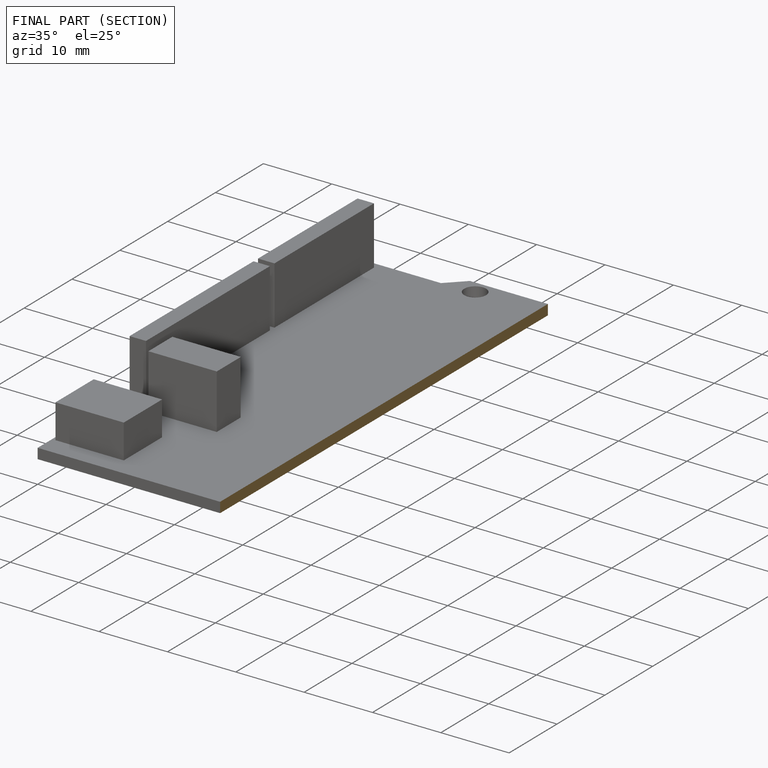
[diagram: finished part — half-section view (interior)]
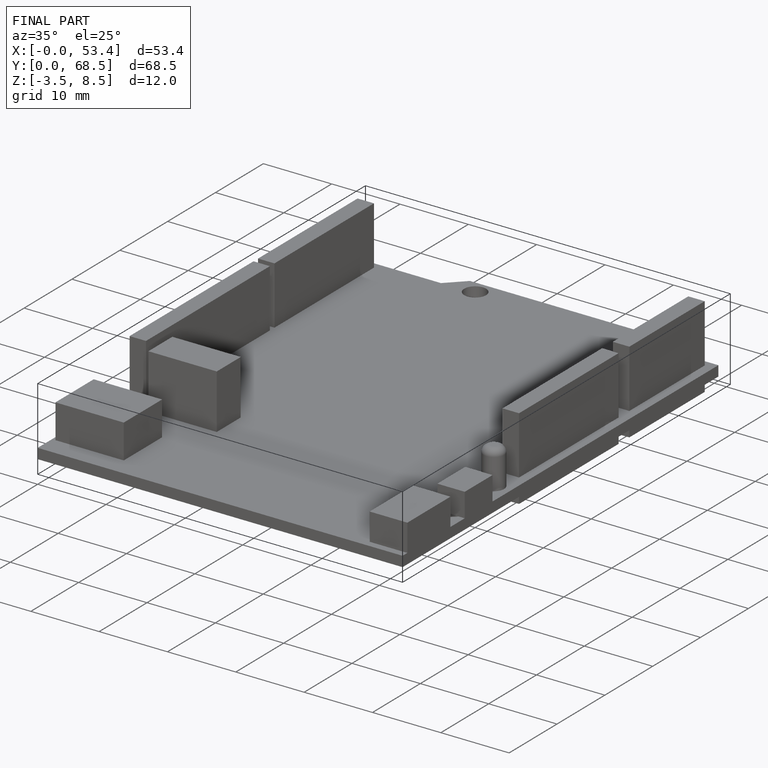
[diagram: finished part — iso view with bounding-box wireframe]
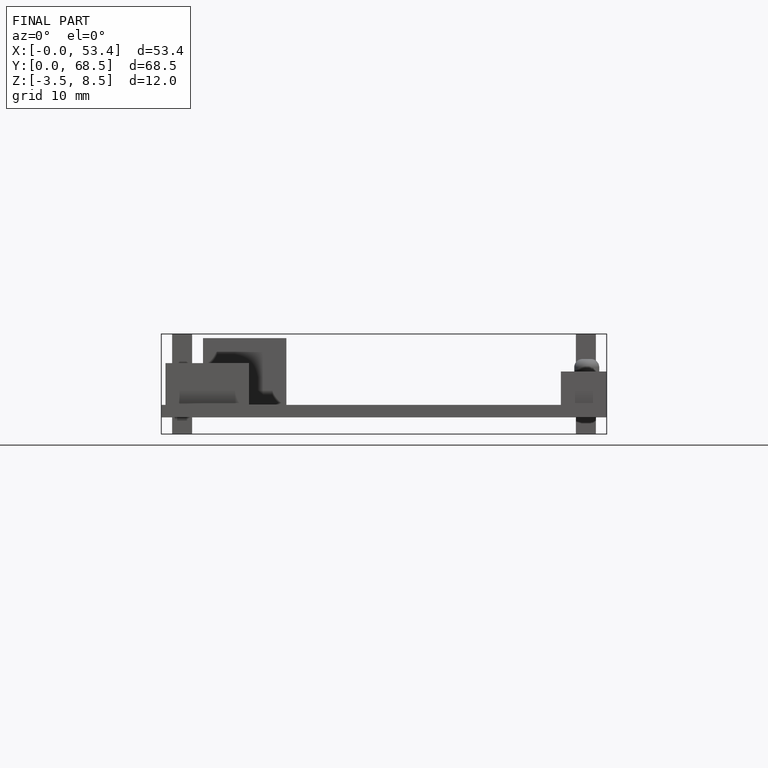
[diagram: finished part — front view with bounding-box wireframe]
